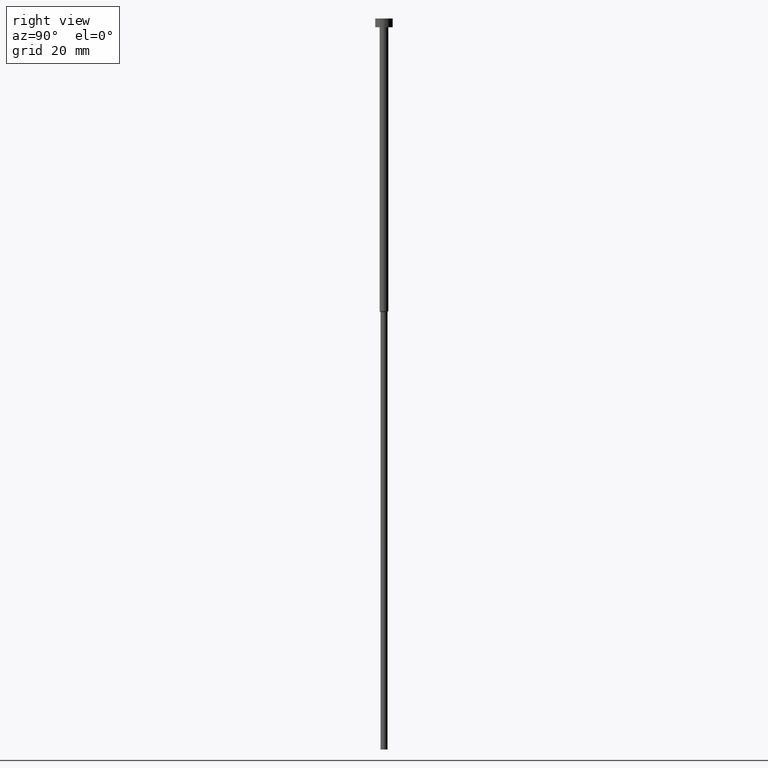
[diagram: clean part render]
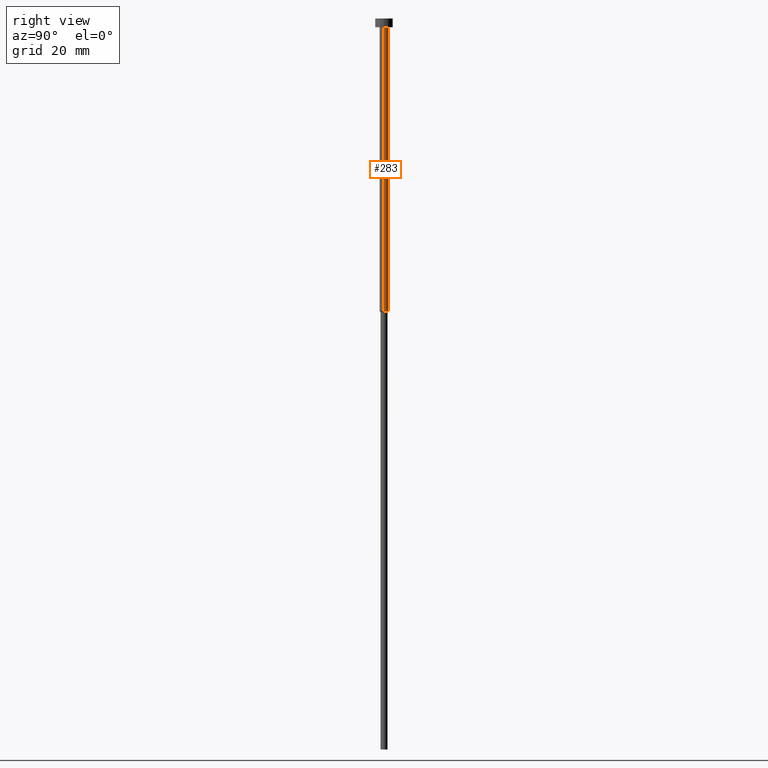
[diagram: same view with one face highlighted and labeled with its STEP entity id]
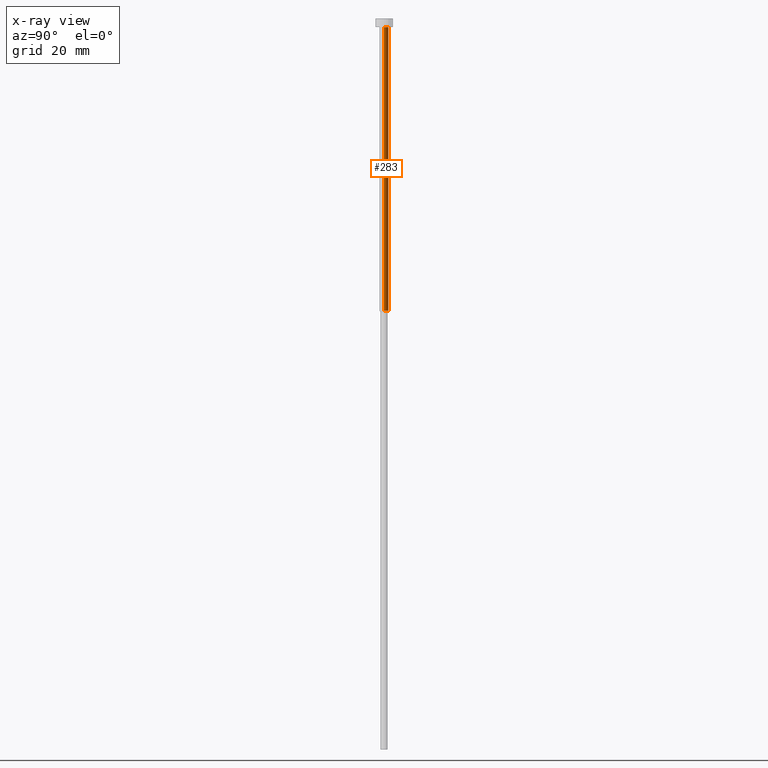
[diagram: x-ray of the same camera — body ghosted, the highlighted face saturated]
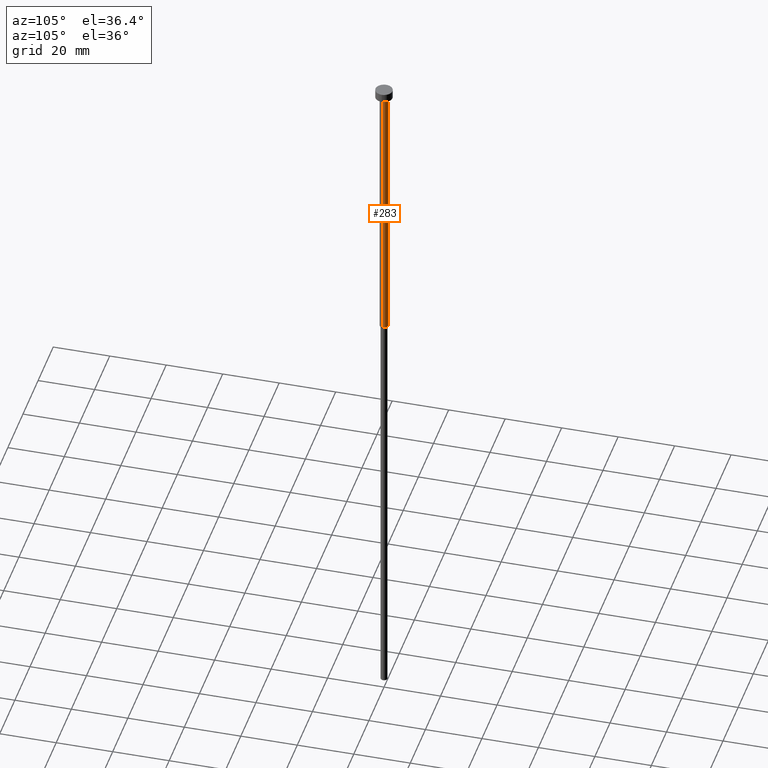
[diagram: same view with one face highlighted and labeled with its STEP entity id]
A machine part, right view. The second image highlights one B-rep face of the part: STEP entity #283.
The next image is the same camera in x-ray: the body ghosted, the highlighted face saturated — about 0% of this face is hidden behind the body in this view.
A second angle (auxiliary view) of the same face is appended — the face is thin or edge-on in the first view.
In plain terms, the highlighted cylindrical surface (edge-blend (fillet) strip) has radius 1.5 mm, axis along (-0, -0, 1).
Its self-contained STEP definition (entity closure, byte-faithful):
#3 = CARTESIAN_POINT ( 'NONE',  ( 0.000000000000000000, 0.000000000000000000, -3.000000000000000888 ) ) ;
#9 = DIRECTION ( 'NONE',  ( -0.000000000000000000, -0.000000000000000000, 1.000000000000000000 ) ) ;
#11 = VECTOR ( 'NONE', #80, 1000.000000000000000 ) ;
#20 = EDGE_CURVE ( 'NONE', #46, #51, #163, .T. ) ;
#39 = EDGE_CURVE ( 'NONE', #51, #95, #108, .T. ) ;
#46 = VERTEX_POINT ( 'NONE', #318 ) ;
#51 = VERTEX_POINT ( 'NONE', #57 ) ;
#55 = AXIS2_PLACEMENT_3D ( 'NONE', #315, #9, #175 ) ;
#57 = CARTESIAN_POINT ( 'NONE',  ( 1.500000000000000000, 0.000000000000000000, -3.000000000000000888 ) ) ;
#80 = DIRECTION ( 'NONE',  ( -0.000000000000000000, -0.000000000000000000, 1.000000000000000000 ) ) ;
#95 = VERTEX_POINT ( 'NONE', #185 ) ;
#108 = CIRCLE ( 'NONE', #335, 1.500000000000000000 ) ;
#118 = EDGE_CURVE ( 'NONE', #316, #95, #327, .T. ) ;
#127 = AXIS2_PLACEMENT_3D ( 'NONE', #145, #334, #195 ) ;
#129 = ORIENTED_EDGE ( 'NONE', *, *, #20, .F. ) ;
#145 = CARTESIAN_POINT ( 'NONE',  ( 0.000000000000000000, 0.000000000000000000, 0.000000000000000000 ) ) ;
#162 = EDGE_LOOP ( 'NONE', ( #179, #341, #266, #129 ) ) ;
#163 = LINE ( 'NONE', #204, #11 ) ;
#173 = FACE_OUTER_BOUND ( 'NONE', #162, .T. ) ;
#175 = DIRECTION ( 'NONE',  ( 1.000000000000000000, 0.000000000000000000, 0.000000000000000000 ) ) ;
#179 = ORIENTED_EDGE ( 'NONE', *, *, #354, .T. ) ;
#185 = CARTESIAN_POINT ( 'NONE',  ( -1.500000000000000000, 1.836970198721029934E-16, -3.000000000000000888 ) ) ;
#187 = VECTOR ( 'NONE', #237, 1000.000000000000000 ) ;
#190 = CYLINDRICAL_SURFACE ( 'NONE', #127, 1.500000000000000000 ) ;
#195 = DIRECTION ( 'NONE',  ( 1.000000000000000000, 0.000000000000000000, 0.000000000000000000 ) ) ;
#202 = DIRECTION ( 'NONE',  ( 1.000000000000000000, 0.000000000000000000, 0.000000000000000000 ) ) ;
#204 = CARTESIAN_POINT ( 'NONE',  ( 1.500000000000000000, 0.000000000000000000, 0.000000000000000000 ) ) ;
#216 = CIRCLE ( 'NONE', #55, 1.500000000000000000 ) ;
#220 = CARTESIAN_POINT ( 'NONE',  ( -1.500000000000000000, 1.836970198721029934E-16, -100.0000000000000000 ) ) ;
#235 = CARTESIAN_POINT ( 'NONE',  ( -1.500000000000000000, 1.836970198721029934E-16, 0.000000000000000000 ) ) ;
#237 = DIRECTION ( 'NONE',  ( -0.000000000000000000, -0.000000000000000000, 1.000000000000000000 ) ) ;
#260 = DIRECTION ( 'NONE',  ( -0.000000000000000000, -0.000000000000000000, 1.000000000000000000 ) ) ;
#266 = ORIENTED_EDGE ( 'NONE', *, *, #39, .F. ) ;
#283 = ADVANCED_FACE ( 'NONE', ( #173 ), #190, .T. ) ;
#315 = CARTESIAN_POINT ( 'NONE',  ( 0.000000000000000000, 0.000000000000000000, -100.0000000000000000 ) ) ;
#316 = VERTEX_POINT ( 'NONE', #220 ) ;
#318 = CARTESIAN_POINT ( 'NONE',  ( 1.500000000000000000, 0.000000000000000000, -100.0000000000000000 ) ) ;
#327 = LINE ( 'NONE', #235, #187 ) ;
#334 = DIRECTION ( 'NONE',  ( -0.000000000000000000, -0.000000000000000000, 1.000000000000000000 ) ) ;
#335 = AXIS2_PLACEMENT_3D ( 'NONE', #3, #260, #202 ) ;
#341 = ORIENTED_EDGE ( 'NONE', *, *, #118, .T. ) ;
#354 = EDGE_CURVE ( 'NONE', #46, #316, #216, .T. ) ;